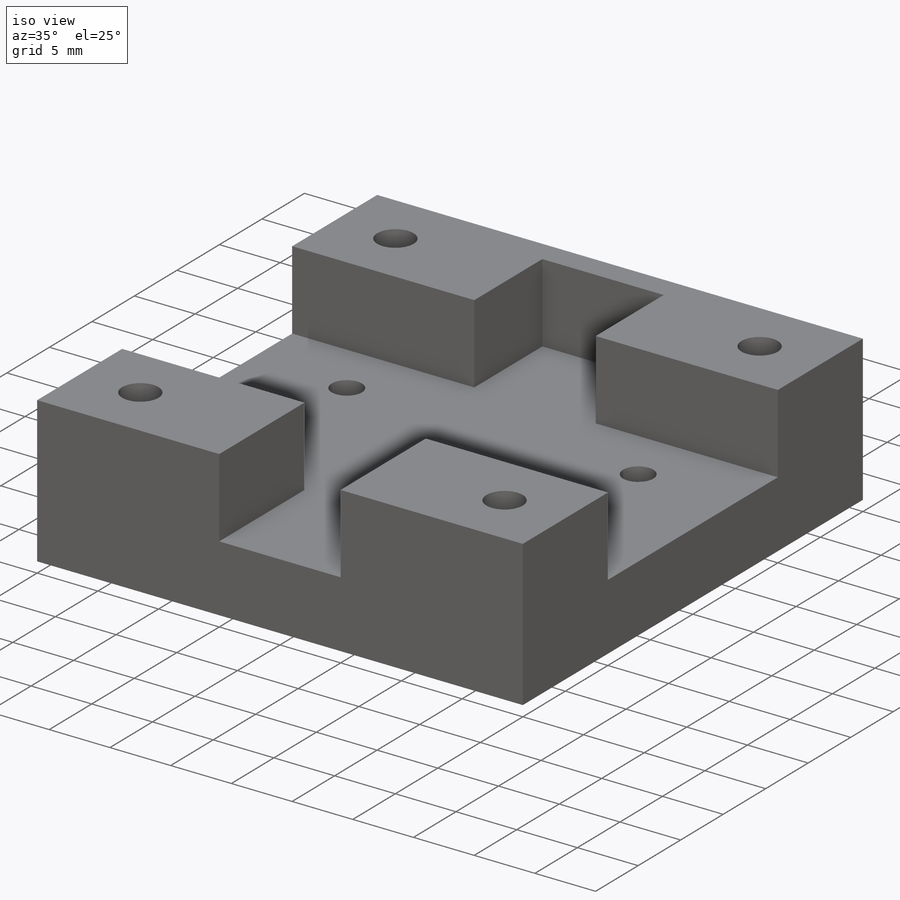
[diagram: iso view]
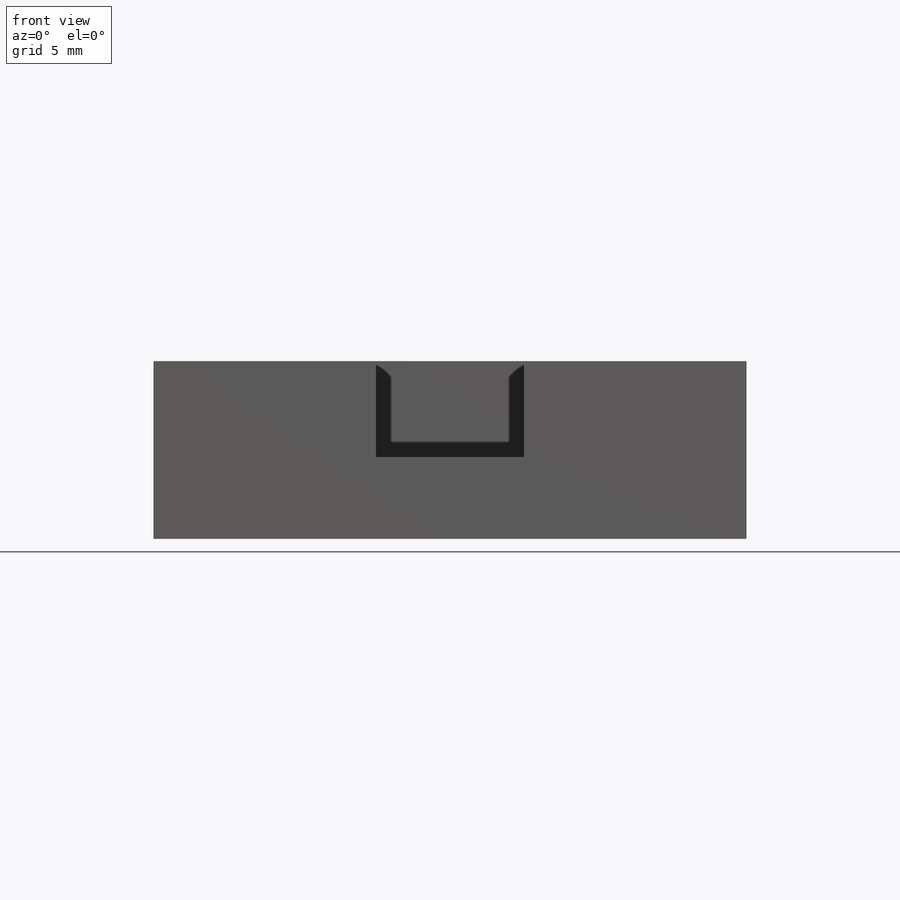
[diagram: front view]
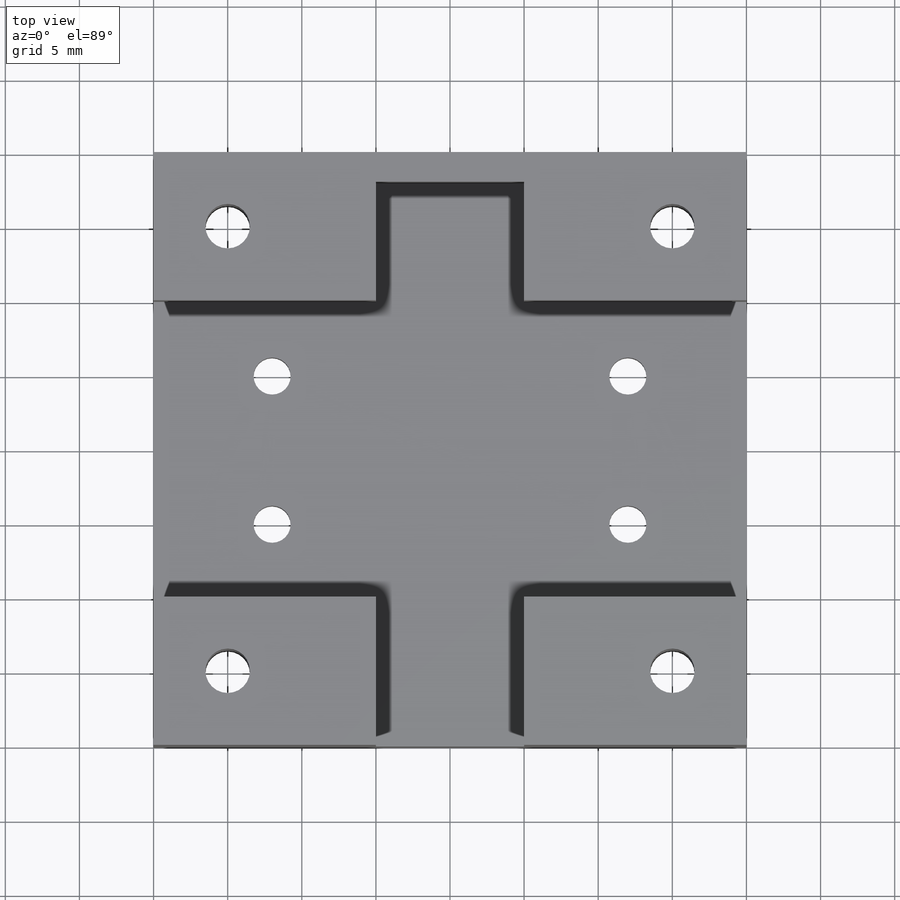
[diagram: top view]
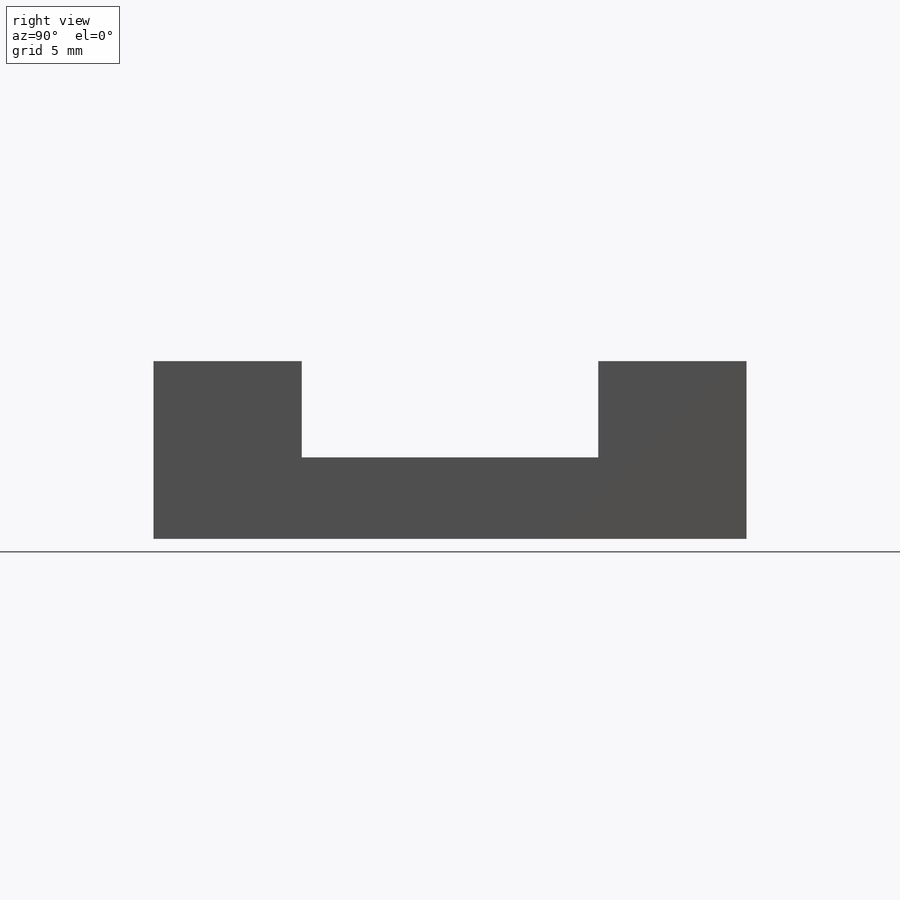
[diagram: right view]
SOLIDWORKS PART (.sldprt)
format: sldprt  version: not decoded by parser v0  size: 209,408 bytes
history: native  units: mm
features: sketch x4, plane x3, extrude x2, cut_extrude x2, material x1, chamfer x1 (+13 scaffold rows collapsed)
feature tree (26):
  scaffold x13  (default folders/planes/origin — collapsed)
  material  "Matériau <non spécifié>"
  plane  "Plan de face"
  plane  "Plan de dessus"
  plane  "Plan de droite"
  sketch  "Esquisse1"  dims[c1.D1=5.0mm c1.D2=10.0mm c1.D3=12.0mm c1.D4=7.0mm c2.D1=6.5mm c2.D2=5.0mm c2.D4=5.0mm c2.D5=20.0mm c2.D6=12.0mm c2.D7=20.0mm]
  extrude  "Boss.-Extru.1"  Depth=40mm
  sketch  "Esquisse2"  dims[c1.D1=~1.938903mm c1.D3=3.0mm c1.D4=2.5mm c1.D5=2.0mm c1.D6=2.0mm c2.D1=15.0mm c2.D2=15.0mm c2.D5=5.0mm c2.D6=7.0mm]
  cut_extrude  "Enlèv. mat.-Extru.1"  [1 undecoded]
  sketch  "Esquisse3"  dims[D1=10.0mm]
  cut_extrude  "Enlèv. mat.-Extru.2"  Depth=6.5mm
  sketch  "Esquisse4"
  extrude  "Boss.-Extru.2"  Depth=2mm
  chamfer  "Chanfrein1"  Distance=2mm Angle=45deg
decode coverage: 7 of 9 modeling features carry decoded parameters
note: ~ marks probable driven/reference dimensions
note: 1 parameter value undecoded
note: suppression state not decoded; provenance and decode notes live in map.json
